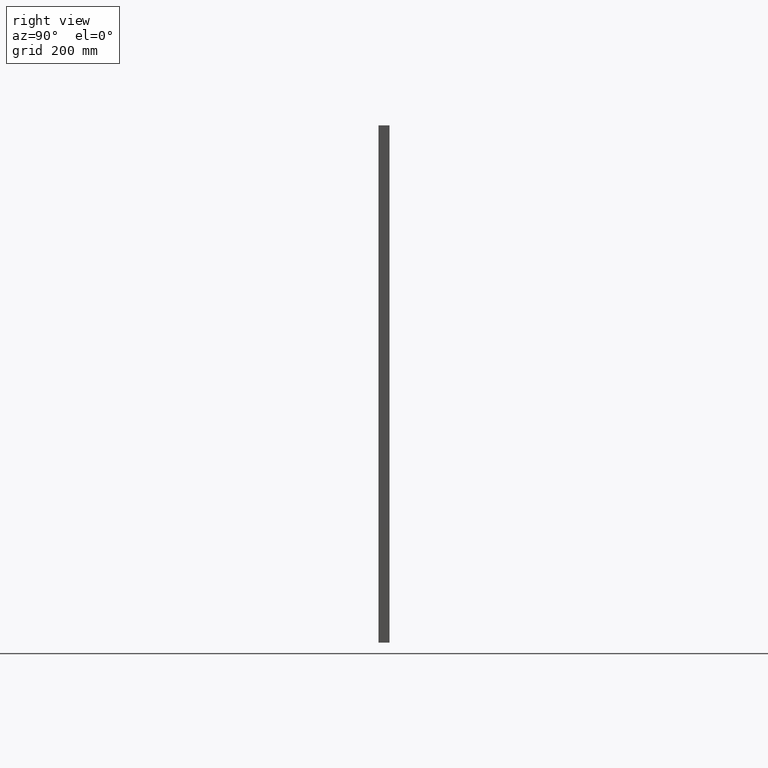
[diagram: clean part render]
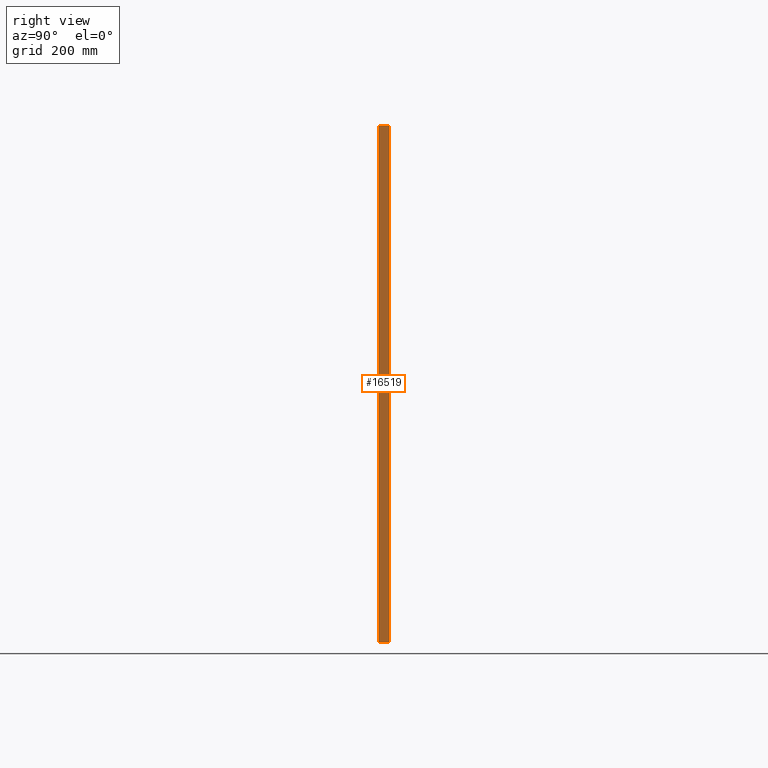
[diagram: same view with one face highlighted and labeled with its STEP entity id]
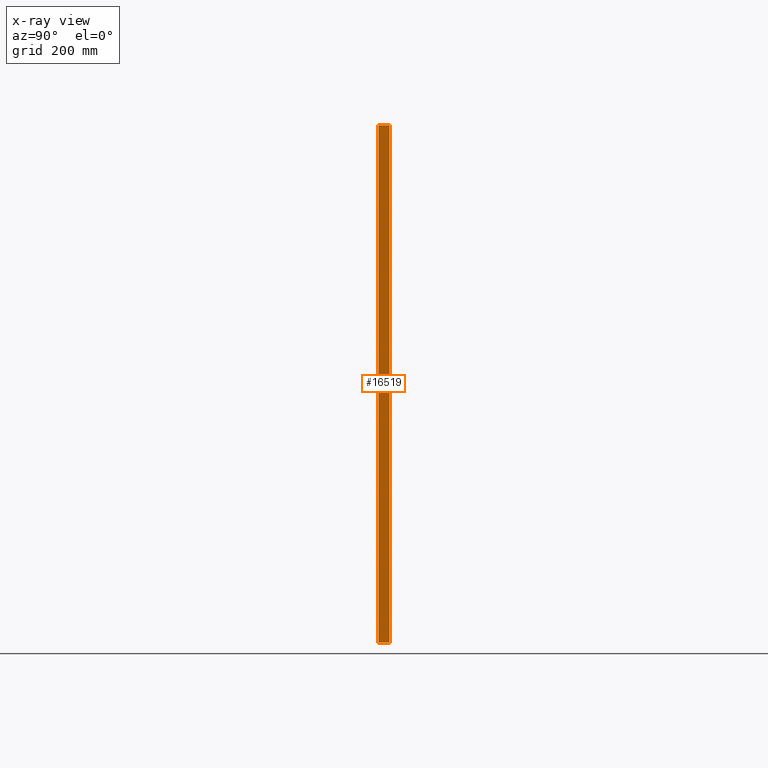
[diagram: x-ray of the same camera — body ghosted, the highlighted face saturated]
A machine part, right view. The second image highlights one B-rep face of the part: STEP entity #16519.
The next image is the same camera in x-ray: the body ghosted, the highlighted face saturated — about 0% of this face is hidden behind the body in this view.
In plain terms, the highlighted planar face has unit normal (-1, 0, 0).
Its self-contained STEP definition (entity closure, byte-faithful):
#164 = DIRECTION ( 'NONE',  ( -0.000000000000000000, -1.000000000000000000, -0.000000000000000000 ) ) ;
#3708 = DIRECTION ( 'NONE',  ( -1.233581138472396211E-16, -0.000000000000000000, -1.000000000000000000 ) ) ;
#9281 = LINE ( 'NONE', #38591, #16223 ) ;
#11542 = DIRECTION ( 'NONE',  ( -1.233581138472396211E-16, -0.000000000000000000, -1.000000000000000000 ) ) ;
#15593 = ORIENTED_EDGE ( 'NONE', *, *, #20991, .F. ) ;
#15898 = VERTEX_POINT ( 'NONE', #31425 ) ;
#16223 = VECTOR ( 'NONE', #3708, 1000.000000000000000 ) ;
#16519 = ADVANCED_FACE ( 'NONE', ( #40441 ), #33601, .F. ) ;
#18444 = CARTESIAN_POINT ( 'NONE',  ( 450.0000000000000000, 19.00000000000000000, -449.9999999999999432 ) ) ;
#19826 = DIRECTION ( 'NONE',  ( -1.000000000000000000, 0.000000000000000000, 1.233581138472396211E-16 ) ) ;
#20991 = EDGE_CURVE ( 'NONE', #43829, #50874, #74471, .T. ) ;
#28581 = AXIS2_PLACEMENT_3D ( 'NONE', #18444, #19826, #35858 ) ;
#30655 = VECTOR ( 'NONE', #54266, 1000.000000000000000 ) ;
#31425 = CARTESIAN_POINT ( 'NONE',  ( 450.0000000000001137, 0.000000000000000000, 450.0000000000000000 ) ) ;
#33601 = PLANE ( 'NONE',  #28581 ) ;
#33903 = CARTESIAN_POINT ( 'NONE',  ( 450.0000000000000000, 19.00000000000000000, -449.9999999999999432 ) ) ;
#33979 = EDGE_CURVE ( 'NONE', #78289, #15898, #84577, .T. ) ;
#34122 = EDGE_CURVE ( 'NONE', #15898, #50874, #9281, .T. ) ;
#35618 = EDGE_CURVE ( 'NONE', #78289, #43829, #81756, .T. ) ;
#35858 = DIRECTION ( 'NONE',  ( 1.233581138472396211E-16, 0.000000000000000000, 1.000000000000000000 ) ) ;
#38591 = CARTESIAN_POINT ( 'NONE',  ( 450.0000000000000000, 0.000000000000000000, -449.9999999999999432 ) ) ;
#39638 = VECTOR ( 'NONE', #164, 1000.000000000000000 ) ;
#40441 = FACE_OUTER_BOUND ( 'NONE', #79509, .T. ) ;
#43829 = VERTEX_POINT ( 'NONE', #33903 ) ;
#49220 = CARTESIAN_POINT ( 'NONE',  ( 450.0000000000001137, 19.00000000000000000, 450.0000000000000000 ) ) ;
#50874 = VERTEX_POINT ( 'NONE', #69709 ) ;
#54266 = DIRECTION ( 'NONE',  ( -0.000000000000000000, -1.000000000000000000, -0.000000000000000000 ) ) ;
#69709 = CARTESIAN_POINT ( 'NONE',  ( 450.0000000000000000, 0.000000000000000000, -449.9999999999999432 ) ) ;
#70217 = ORIENTED_EDGE ( 'NONE', *, *, #34122, .T. ) ;
#74471 = LINE ( 'NONE', #89155, #30655 ) ;
#78289 = VERTEX_POINT ( 'NONE', #84237 ) ;
#78945 = ORIENTED_EDGE ( 'NONE', *, *, #35618, .F. ) ;
#79509 = EDGE_LOOP ( 'NONE', ( #70217, #15593, #78945, #81160 ) ) ;
#80424 = VECTOR ( 'NONE', #11542, 1000.000000000000000 ) ;
#81160 = ORIENTED_EDGE ( 'NONE', *, *, #33979, .T. ) ;
#81756 = LINE ( 'NONE', #88657, #80424 ) ;
#84237 = CARTESIAN_POINT ( 'NONE',  ( 450.0000000000001137, 19.00000000000000000, 450.0000000000000000 ) ) ;
#84577 = LINE ( 'NONE', #49220, #39638 ) ;
#88657 = CARTESIAN_POINT ( 'NONE',  ( 450.0000000000000000, 19.00000000000000000, -449.9999999999999432 ) ) ;
#89155 = CARTESIAN_POINT ( 'NONE',  ( 450.0000000000000000, 19.00000000000000000, -449.9999999999999432 ) ) ;